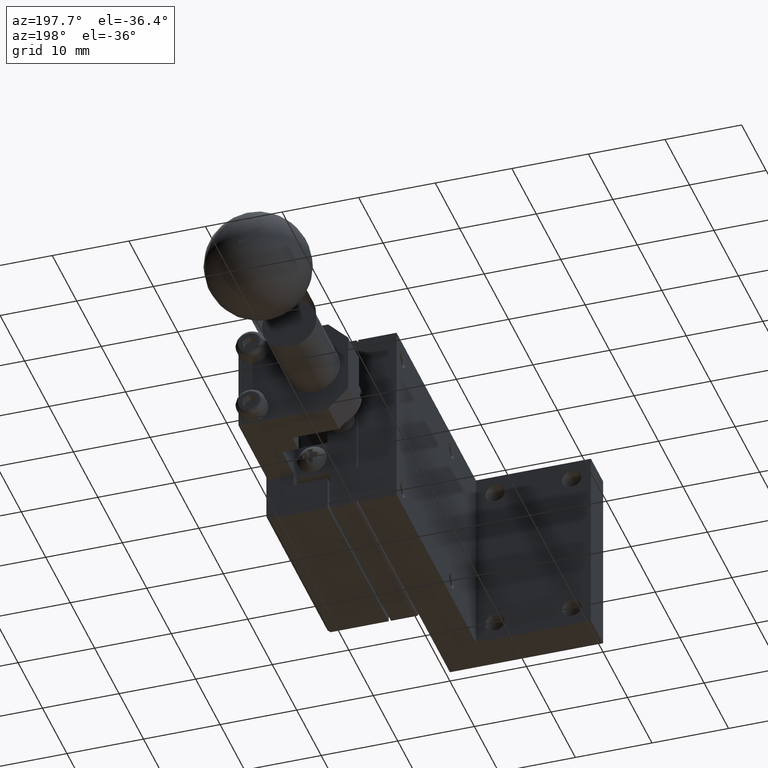
[diagram: clean part render]
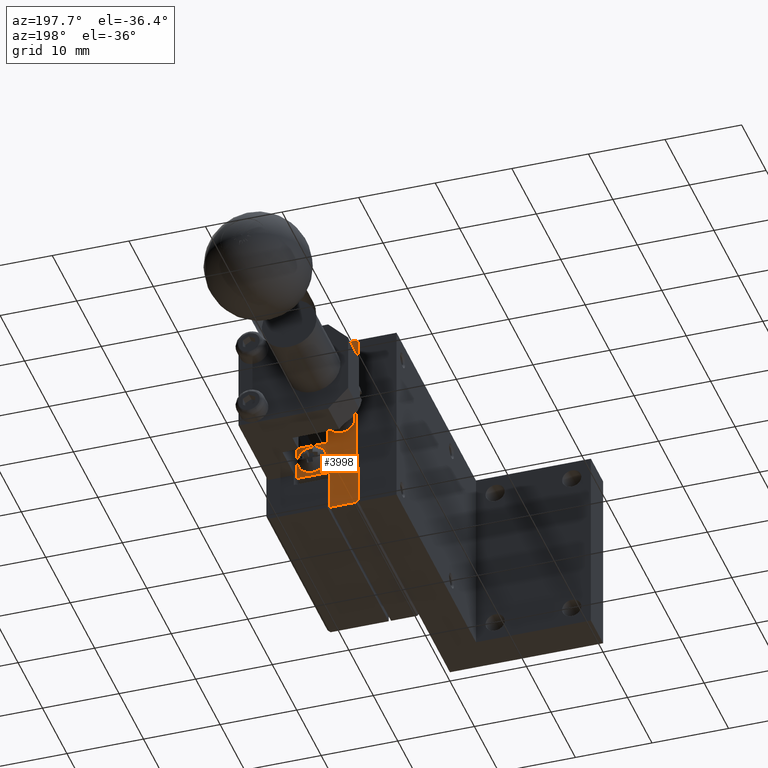
[diagram: same view with one face highlighted and labeled with its STEP entity id]
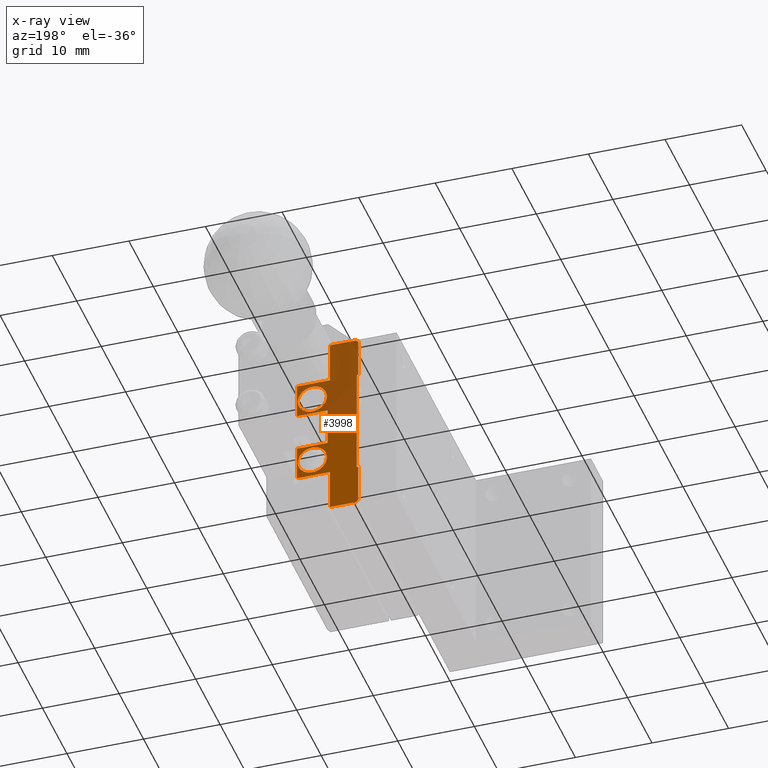
[diagram: x-ray of the same camera — body ghosted, the highlighted face saturated]
A machine part, auxiliary view. The second image highlights one B-rep face of the part: STEP entity #3998.
The next image is the same camera in x-ray: the body ghosted, the highlighted face saturated — about 49% of this face is hidden behind the body in this view.
In plain terms, the highlighted planar face has unit normal (-0, 1, 0).
Its self-contained STEP definition (entity closure, byte-faithful):
#188 = CARTESIAN_POINT ( 'NONE',  ( 3.699999999999990408, 37.50000000000000711, 0.000000000000000000 ) ) ;
#354 = CARTESIAN_POINT ( 'NONE',  ( 0.000000000000000000, 37.50000000000000711, -19.60000000000000142 ) ) ;
#2117 = DIRECTION ( 'NONE',  ( 0.7071067811865140440, -0.000000000000000000, 0.7071067811865809905 ) ) ;
#2405 = EDGE_CURVE ( 'NONE', #7835, #90465, #12511, .T. ) ;
#3998 = ADVANCED_FACE ( 'NONE', ( #20273, #19817, #5780 ), #34335, .T. ) ;
#4343 = CARTESIAN_POINT ( 'NONE',  ( 0.1999999999999889921, 37.50000000000000711, -19.60000000000000142 ) ) ;
#5780 = FACE_BOUND ( 'NONE', #14046, .T. ) ;
#6188 = VECTOR ( 'NONE', #79520, 1000.000000000000000 ) ;
#6859 = VECTOR ( 'NONE', #55733, 1000.000000000000000 ) ;
#7177 = VERTEX_POINT ( 'NONE', #34719 ) ;
#7211 = LINE ( 'NONE', #188, #48396 ) ;
#7835 = VERTEX_POINT ( 'NONE', #73295 ) ;
#8491 = CARTESIAN_POINT ( 'NONE',  ( 8.000000000000000000, 37.50000000000000711, -15.00000000000000000 ) ) ;
#8940 = EDGE_CURVE ( 'NONE', #71535, #30797, #28324, .T. ) ;
#9318 = VERTEX_POINT ( 'NONE', #8491 ) ;
#9425 = ORIENTED_EDGE ( 'NONE', *, *, #2405, .T. ) ;
#9630 = CARTESIAN_POINT ( 'NONE',  ( 3.699999999999990408, 37.50000000000000711, 4.531193156845203243E-16 ) ) ;
#10069 = VECTOR ( 'NONE', #10828, 1000.000000000000000 ) ;
#10096 = CARTESIAN_POINT ( 'NONE',  ( 0.1999999999999889921, 37.50000000000000711, -19.60000000000000142 ) ) ;
#10828 = DIRECTION ( 'NONE',  ( -1.000000000000000000, -0.000000000000000000, -0.000000000000000000 ) ) ;
#11585 = EDGE_CURVE ( 'NONE', #34093, #67167, #7211, .T. ) ;
#11740 = ORIENTED_EDGE ( 'NONE', *, *, #28238, .T. ) ;
#12038 = VECTOR ( 'NONE', #2117, 1000.000000000000000 ) ;
#12511 = LINE ( 'NONE', #354, #73340 ) ;
#12622 = ORIENTED_EDGE ( 'NONE', *, *, #22527, .T. ) ;
#13377 = ORIENTED_EDGE ( 'NONE', *, *, #29242, .T. ) ;
#13988 = DIRECTION ( 'NONE',  ( 1.000000000000000000, 0.000000000000000000, 0.000000000000000000 ) ) ;
#14046 = EDGE_LOOP ( 'NONE', ( #11740 ) ) ;
#14053 = ORIENTED_EDGE ( 'NONE', *, *, #45522, .T. ) ;
#14120 = CIRCLE ( 'NONE', #60381, 1.900000000000010125 ) ;
#15198 = DIRECTION ( 'NONE',  ( 0.000000000000000000, 0.000000000000000000, -1.000000000000000000 ) ) ;
#15267 = CARTESIAN_POINT ( 'NONE',  ( 0.2999999999999810041, 37.50000000000000711, 8.164042358815847155E-17 ) ) ;
#16644 = DIRECTION ( 'NONE',  ( 1.000000000000000000, 0.000000000000000000, 0.000000000000000000 ) ) ;
#17927 = LINE ( 'NONE', #68442, #69329 ) ;
#18098 = ORIENTED_EDGE ( 'NONE', *, *, #83266, .T. ) ;
#19473 = DIRECTION ( 'NONE',  ( 0.000000000000000000, -1.000000000000000000, 0.000000000000000000 ) ) ;
#19727 = EDGE_CURVE ( 'NONE', #27686, #34093, #23702, .T. ) ;
#19817 = FACE_BOUND ( 'NONE', #61691, .T. ) ;
#20273 = FACE_OUTER_BOUND ( 'NONE', #49089, .T. ) ;
#20633 = VERTEX_POINT ( 'NONE', #88614 ) ;
#22264 = LINE ( 'NONE', #50808, #67802 ) ;
#22527 = EDGE_CURVE ( 'NONE', #60555, #57663, #31641, .T. ) ;
#22633 = VERTEX_POINT ( 'NONE', #39881 ) ;
#23356 = VECTOR ( 'NONE', #59692, 1000.000000000000000 ) ;
#23702 = LINE ( 'NONE', #25088, #77039 ) ;
#25088 = CARTESIAN_POINT ( 'NONE',  ( 0.000000000000000000, 37.50000000000000711, 5.421010862427519705E-17 ) ) ;
#25442 = DIRECTION ( 'NONE',  ( -0.7071067811865130448, -0.000000000000000000, 0.7071067811865819897 ) ) ;
#25460 = ORIENTED_EDGE ( 'NONE', *, *, #82277, .T. ) ;
#26277 = VECTOR ( 'NONE', #63797, 1000.000000000000000 ) ;
#26668 = EDGE_CURVE ( 'NONE', #84459, #9318, #90900, .T. ) ;
#26763 = CARTESIAN_POINT ( 'NONE',  ( -1.111036176254520472E-15, 37.50000000000000711, -5.399999999999979927 ) ) ;
#27345 = DIRECTION ( 'NONE',  ( -0.000000000000000000, 1.000000000000000000, 0.000000000000000000 ) ) ;
#27686 = VERTEX_POINT ( 'NONE', #15267 ) ;
#28238 = EDGE_CURVE ( 'NONE', #44753, #44753, #50266, .T. ) ;
#28324 = LINE ( 'NONE', #56841, #45259 ) ;
#28600 = ORIENTED_EDGE ( 'NONE', *, *, #26668, .T. ) ;
#28996 = LINE ( 'NONE', #72384, #80092 ) ;
#29242 = EDGE_CURVE ( 'NONE', #67167, #7177, #28996, .T. ) ;
#29869 = ORIENTED_EDGE ( 'NONE', *, *, #76721, .T. ) ;
#30120 = DIRECTION ( 'NONE',  ( 0.000000000000000000, 0.000000000000000000, -1.000000000000000000 ) ) ;
#30797 = VERTEX_POINT ( 'NONE', #41670 ) ;
#31641 = LINE ( 'NONE', #68542, #23356 ) ;
#32362 = VECTOR ( 'NONE', #32940, 1000.000000000000000 ) ;
#32491 = CARTESIAN_POINT ( 'NONE',  ( 4.000000000000000000, 37.50000000000000711, 0.000000000000000000 ) ) ;
#32940 = DIRECTION ( 'NONE',  ( 0.000000000000000000, 0.000000000000000000, -1.000000000000000000 ) ) ;
#34093 = VERTEX_POINT ( 'NONE', #9630 ) ;
#34184 = EDGE_CURVE ( 'NONE', #80855, #20633, #87066, .T. ) ;
#34335 = PLANE ( 'NONE',  #68982 ) ;
#34719 = CARTESIAN_POINT ( 'NONE',  ( 8.000000000000000000, 37.50000000000000711, -5.399999999999979927 ) ) ;
#34870 = VERTEX_POINT ( 'NONE', #84844 ) ;
#34876 = VECTOR ( 'NONE', #54563, 1000.000000000000000 ) ;
#35332 = CARTESIAN_POINT ( 'NONE',  ( 0.000000000000000000, 37.50000000000000711, -15.00000000000000000 ) ) ;
#35610 = CARTESIAN_POINT ( 'NONE',  ( 1.246832498358329902E-15, 37.50000000000000711, 0.000000000000000000 ) ) ;
#36787 = CARTESIAN_POINT ( 'NONE',  ( -1.739617435425829999E-15, 37.50000000000000711, -0.3000000000000109801 ) ) ;
#39063 = VERTEX_POINT ( 'NONE', #52206 ) ;
#39881 = CARTESIAN_POINT ( 'NONE',  ( 4.337188160702386874E-15, 37.50000000000000711, -24.69999999999999929 ) ) ;
#40740 = VECTOR ( 'NONE', #54924, 1000.000000000000000 ) ;
#41602 = CARTESIAN_POINT ( 'NONE',  ( 4.000000000000000000, 37.50000000000000711, -10.00000000000000178 ) ) ;
#41670 = CARTESIAN_POINT ( 'NONE',  ( -1.577763558050824665E-15, 37.50000000000000711, -0.3000000000000108691 ) ) ;
#41782 = DIRECTION ( 'NONE',  ( -0.000000000000000000, -1.000000000000000000, -0.000000000000000000 ) ) ;
#42472 = DIRECTION ( 'NONE',  ( 1.000000000000000000, 0.000000000000000000, 0.000000000000000000 ) ) ;
#42492 = EDGE_CURVE ( 'NONE', #30797, #27686, #51748, .T. ) ;
#43524 = CARTESIAN_POINT ( 'NONE',  ( 4.000000000000000000, 37.50000000000000711, -15.00000000000000000 ) ) ;
#44753 = VERTEX_POINT ( 'NONE', #72275 ) ;
#45259 = VECTOR ( 'NONE', #70346, 1000.000000000000000 ) ;
#45522 = EDGE_CURVE ( 'NONE', #39063, #71535, #76427, .T. ) ;
#45721 = LINE ( 'NONE', #59718, #40740 ) ;
#46513 = LINE ( 'NONE', #32491, #32362 ) ;
#46699 = ORIENTED_EDGE ( 'NONE', *, *, #42492, .T. ) ;
#48396 = VECTOR ( 'NONE', #30120, 1000.000000000000000 ) ;
#48845 = DIRECTION ( 'NONE',  ( 1.000000000000000000, 0.000000000000000000, 0.000000000000000000 ) ) ;
#49089 = EDGE_LOOP ( 'NONE', ( #64478, #46699, #69334, #53889, #13377, #87596, #71424, #58216, #28600, #25460, #12622, #29869, #63737, #50903, #61838, #9425, #67494, #14053 ) ) ;
#50266 = CIRCLE ( 'NONE', #54736, 1.900000000000009237 ) ;
#50808 = CARTESIAN_POINT ( 'NONE',  ( 8.000000000000000000, 37.50000000000000711, 0.000000000000000000 ) ) ;
#50903 = ORIENTED_EDGE ( 'NONE', *, *, #83063, .T. ) ;
#51233 = LINE ( 'NONE', #64284, #76994 ) ;
#51748 = LINE ( 'NONE', #36787, #12038 ) ;
#52137 = EDGE_CURVE ( 'NONE', #22633, #7835, #63167, .T. ) ;
#52206 = CARTESIAN_POINT ( 'NONE',  ( 0.1999999999999883260, 37.50000000000000711, -5.399999999999980815 ) ) ;
#52482 = CARTESIAN_POINT ( 'NONE',  ( 3.699999999999990408, 37.50000000000000711, -25.00000000000000000 ) ) ;
#53889 = ORIENTED_EDGE ( 'NONE', *, *, #11585, .T. ) ;
#54267 = CARTESIAN_POINT ( 'NONE',  ( 3.699999999999989964, 37.50000000000000711, -19.60000000000000142 ) ) ;
#54563 = DIRECTION ( 'NONE',  ( -1.221636250687890015E-16, -0.000000000000000000, 1.000000000000000000 ) ) ;
#54736 = AXIS2_PLACEMENT_3D ( 'NONE', #85201, #41782, #77266 ) ;
#54924 = DIRECTION ( 'NONE',  ( 0.000000000000000000, 0.000000000000000000, -1.000000000000000000 ) ) ;
#55733 = DIRECTION ( 'NONE',  ( -0.000000000000000000, -0.000000000000000000, 1.000000000000000000 ) ) ;
#56028 = EDGE_CURVE ( 'NONE', #59652, #84459, #46513, .T. ) ;
#56841 = CARTESIAN_POINT ( 'NONE',  ( -1.111307226797640073E-15, 37.50000000000000711, 0.000000000000000000 ) ) ;
#57663 = VERTEX_POINT ( 'NONE', #54267 ) ;
#58216 = ORIENTED_EDGE ( 'NONE', *, *, #56028, .T. ) ;
#59652 = VERTEX_POINT ( 'NONE', #41602 ) ;
#59692 = DIRECTION ( 'NONE',  ( -1.000000000000000000, -0.000000000000000000, -0.000000000000000000 ) ) ;
#59718 = CARTESIAN_POINT ( 'NONE',  ( 3.699999999999990408, 37.50000000000000711, 0.000000000000000000 ) ) ;
#60381 = AXIS2_PLACEMENT_3D ( 'NONE', #67193, #19473, #68121 ) ;
#60555 = VERTEX_POINT ( 'NONE', #64187 ) ;
#61691 = EDGE_LOOP ( 'NONE', ( #18098 ) ) ;
#61838 = ORIENTED_EDGE ( 'NONE', *, *, #52137, .T. ) ;
#62814 = CARTESIAN_POINT ( 'NONE',  ( 0.000000000000000000, 37.50000000000000711, 0.000000000000000000 ) ) ;
#63167 = LINE ( 'NONE', #35610, #6859 ) ;
#63737 = ORIENTED_EDGE ( 'NONE', *, *, #34184, .T. ) ;
#63797 = DIRECTION ( 'NONE',  ( 1.000000000000000000, 0.000000000000000000, 0.000000000000000000 ) ) ;
#64187 = CARTESIAN_POINT ( 'NONE',  ( 8.000000000000000000, 37.50000000000000711, -19.60000000000000142 ) ) ;
#64284 = CARTESIAN_POINT ( 'NONE',  ( 0.000000000000000000, 37.50000000000000711, -10.00000000000000000 ) ) ;
#64478 = ORIENTED_EDGE ( 'NONE', *, *, #8940, .T. ) ;
#67167 = VERTEX_POINT ( 'NONE', #87439 ) ;
#67193 = CARTESIAN_POINT ( 'NONE',  ( 6.000000000000000000, 37.50000000000000711, -7.799999999999990052 ) ) ;
#67494 = ORIENTED_EDGE ( 'NONE', *, *, #79597, .T. ) ;
#67802 = VECTOR ( 'NONE', #15198, 1000.000000000000000 ) ;
#67897 = CARTESIAN_POINT ( 'NONE',  ( 8.000000000000000000, 37.50000000000000711, -10.00000000000000000 ) ) ;
#68121 = DIRECTION ( 'NONE',  ( -1.000000000000000000, 0.000000000000000000, 0.000000000000000000 ) ) ;
#68442 = CARTESIAN_POINT ( 'NONE',  ( 0.2999999999999840017, 37.50000000000000711, -25.00000000000000000 ) ) ;
#68542 = CARTESIAN_POINT ( 'NONE',  ( 0.000000000000000000, 37.50000000000000711, -19.60000000000000142 ) ) ;
#68982 = AXIS2_PLACEMENT_3D ( 'NONE', #62814, #27345, #48845 ) ;
#69329 = VECTOR ( 'NONE', #25442, 1000.000000000000000 ) ;
#69334 = ORIENTED_EDGE ( 'NONE', *, *, #19727, .T. ) ;
#70346 = DIRECTION ( 'NONE',  ( -0.000000000000000000, -0.000000000000000000, 1.000000000000000000 ) ) ;
#71424 = ORIENTED_EDGE ( 'NONE', *, *, #88106, .T. ) ;
#71535 = VERTEX_POINT ( 'NONE', #26763 ) ;
#72037 = CARTESIAN_POINT ( 'NONE',  ( 0.1999999999999879929, 37.50000000000000711, -5.399999999999979927 ) ) ;
#72275 = CARTESIAN_POINT ( 'NONE',  ( 7.900000000000009237, 37.50000000000000711, -17.19999999999999929 ) ) ;
#72384 = CARTESIAN_POINT ( 'NONE',  ( 0.000000000000000000, 37.50000000000000711, -5.399999999999979927 ) ) ;
#72752 = LINE ( 'NONE', #73202, #88972 ) ;
#73202 = CARTESIAN_POINT ( 'NONE',  ( 8.000000000000000000, 37.50000000000000711, 0.000000000000000000 ) ) ;
#73295 = CARTESIAN_POINT ( 'NONE',  ( 7.796712897860033066E-16, 37.50000000000000711, -19.60000000000000142 ) ) ;
#73340 = VECTOR ( 'NONE', #42472, 1000.000000000000000 ) ;
#75833 = CARTESIAN_POINT ( 'NONE',  ( 0.000000000000000000, 37.50000000000000711, -25.00000000000000000 ) ) ;
#76427 = LINE ( 'NONE', #72037, #6188 ) ;
#76721 = EDGE_CURVE ( 'NONE', #57663, #80855, #45721, .T. ) ;
#76994 = VECTOR ( 'NONE', #87130, 1000.000000000000000 ) ;
#77039 = VECTOR ( 'NONE', #16644, 1000.000000000000000 ) ;
#77266 = DIRECTION ( 'NONE',  ( 1.000000000000000000, 0.000000000000000000, 0.000000000000000000 ) ) ;
#79520 = DIRECTION ( 'NONE',  ( -1.000000000000000000, -0.000000000000000000, -0.000000000000000000 ) ) ;
#79597 = EDGE_CURVE ( 'NONE', #90465, #39063, #82106, .T. ) ;
#80092 = VECTOR ( 'NONE', #13988, 1000.000000000000000 ) ;
#80855 = VERTEX_POINT ( 'NONE', #52482 ) ;
#82106 = LINE ( 'NONE', #10096, #34876 ) ;
#82277 = EDGE_CURVE ( 'NONE', #9318, #60555, #22264, .T. ) ;
#83063 = EDGE_CURVE ( 'NONE', #20633, #22633, #17927, .T. ) ;
#83266 = EDGE_CURVE ( 'NONE', #34870, #34870, #14120, .T. ) ;
#83800 = VERTEX_POINT ( 'NONE', #67897 ) ;
#84459 = VERTEX_POINT ( 'NONE', #43524 ) ;
#84844 = CARTESIAN_POINT ( 'NONE',  ( 4.099999999999989875, 37.50000000000000711, -7.799999999999990052 ) ) ;
#85201 = CARTESIAN_POINT ( 'NONE',  ( 6.000000000000000000, 37.50000000000000711, -17.19999999999999929 ) ) ;
#87066 = LINE ( 'NONE', #75833, #10069 ) ;
#87130 = DIRECTION ( 'NONE',  ( -1.000000000000000000, -0.000000000000000000, -0.000000000000000000 ) ) ;
#87219 = DIRECTION ( 'NONE',  ( 0.000000000000000000, 0.000000000000000000, -1.000000000000000000 ) ) ;
#87439 = CARTESIAN_POINT ( 'NONE',  ( 3.699999999999990408, 37.50000000000000711, -5.399999999999979927 ) ) ;
#87596 = ORIENTED_EDGE ( 'NONE', *, *, #90037, .T. ) ;
#88106 = EDGE_CURVE ( 'NONE', #83800, #59652, #51233, .T. ) ;
#88614 = CARTESIAN_POINT ( 'NONE',  ( 0.2999999999999840017, 37.50000000000000711, -25.00000000000000000 ) ) ;
#88972 = VECTOR ( 'NONE', #87219, 1000.000000000000000 ) ;
#90037 = EDGE_CURVE ( 'NONE', #7177, #83800, #72752, .T. ) ;
#90465 = VERTEX_POINT ( 'NONE', #4343 ) ;
#90900 = LINE ( 'NONE', #35332, #26277 ) ;